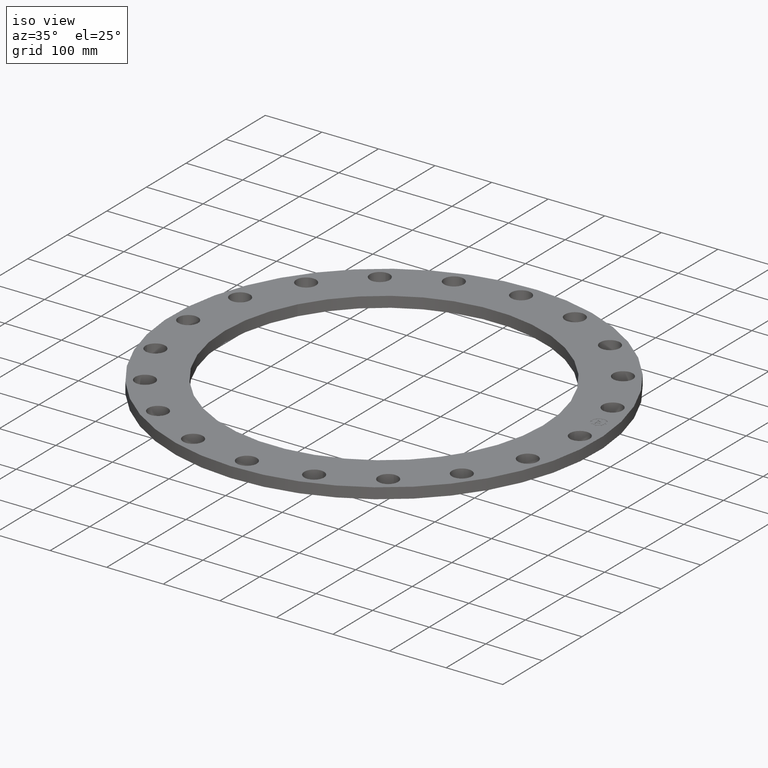
[diagram: clean part render]
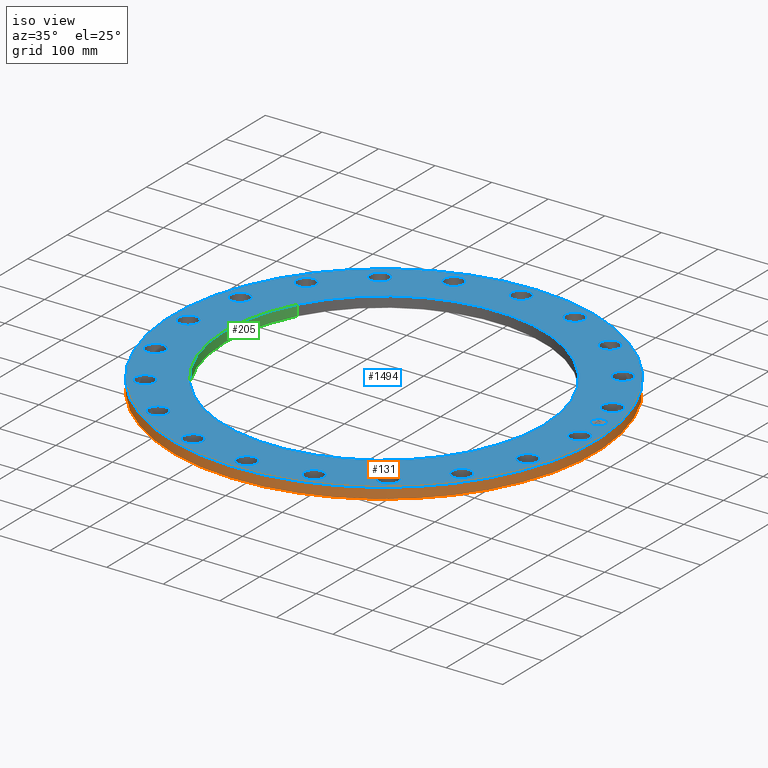
[diagram: same view with three faces highlighted in distinct colors, each labeled with its STEP entity id]
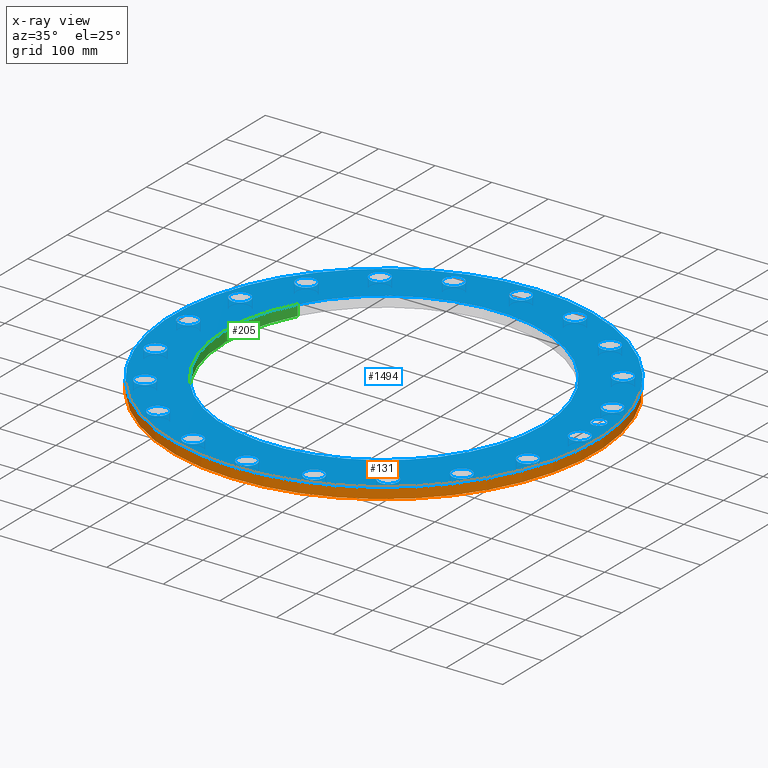
[diagram: x-ray of the same camera — body ghosted, the three highlighted faces saturated]
A machine part, iso view with three faces highlighted in distinct colors.
The next image is the same camera in x-ray (body ghosted, the three faces saturated) — at least one of them is partly hidden behind the body in this view.
Their STEP definitions:

[orange] entity #131 — the highlighted cylindrical surface (partial cylindrical patch) has radius 374.65 mm, axis along (0, 0, 1).
#95=AXIS2_PLACEMENT_3D('Cylinder Axis2P3D',#92,#93,#94) ;
#108=AXIS2_PLACEMENT_3D('Circle Axis2P3D',#106,#107,$) ;
#122=AXIS2_PLACEMENT_3D('Circle Axis2P3D',#120,#121,$) ;
#92=CARTESIAN_POINT('Axis2P3D Location',(0.,0.,0.375000000001)) ;
#97=CARTESIAN_POINT('Line Origine',(12.9443427879,7.07152669444,0.375000000002)) ;
#101=CARTESIAN_POINT('Vertex',(12.9443427879,7.07152669444,0.)) ;
#103=CARTESIAN_POINT('Vertex',(12.9443427879,7.07152669444,0.750000000003)) ;
#106=CARTESIAN_POINT('Axis2P3D Location',(0.,0.,0.750000000003)) ;
#110=CARTESIAN_POINT('Vertex',(-12.9443427879,-7.07152669444,0.750000000003)) ;
#113=CARTESIAN_POINT('Line Origine',(-12.9443427879,-7.07152669444,0.375000000002)) ;
#117=CARTESIAN_POINT('Vertex',(-12.9443427879,-7.07152669444,0.)) ;
#120=CARTESIAN_POINT('Axis2P3D Location',(0.,0.,0.)) ;
#93=DIRECTION('Axis2P3D Direction',(0.,0.,0.0393700787402)) ;
#94=DIRECTION('Axis2P3D XDirection',(0.0345504945626,0.0188750212049,0.)) ;
#98=DIRECTION('Vector Direction',(0.,0.,0.0393700787402)) ;
#107=DIRECTION('Axis2P3D Direction',(0.,0.,0.0393700787402)) ;
#114=DIRECTION('Vector Direction',(0.,0.,0.0393700787402)) ;
#121=DIRECTION('Axis2P3D Direction',(0.,0.,0.0393700787402)) ;
#99=VECTOR('Line Direction',#98,0.0393700787402) ;
#115=VECTOR('Line Direction',#114,0.0393700787402) ;
#126=ORIENTED_EDGE('',*,*,#105,.T.) ;
#127=ORIENTED_EDGE('',*,*,#112,.F.) ;
#128=ORIENTED_EDGE('',*,*,#119,.F.) ;
#129=ORIENTED_EDGE('',*,*,#124,.T.) ;
#131=ADVANCED_FACE('PartBody',(#130),#96,.T.) ;
#109=CIRCLE('generated circle',#108,14.7500000001) ;
#123=CIRCLE('generated circle',#122,14.7500000001) ;
#96=CYLINDRICAL_SURFACE('generated cylinder',#95,14.7500000001) ;
#105=EDGE_CURVE('',#102,#104,#100,.T.) ;
#112=EDGE_CURVE('',#111,#104,#109,.T.) ;
#119=EDGE_CURVE('',#118,#111,#116,.T.) ;
#124=EDGE_CURVE('',#118,#102,#123,.T.) ;
#125=EDGE_LOOP('',(#126,#127,#128,#129)) ;
#130=FACE_OUTER_BOUND('',#125,.T.) ;
#100=LINE('Line',#97,#99) ;
#116=LINE('Line',#113,#115) ;
#102=VERTEX_POINT('',#101) ;
#104=VERTEX_POINT('',#103) ;
#111=VERTEX_POINT('',#110) ;
#118=VERTEX_POINT('',#117) ;

[blue] entity #1494 — the highlighted planar face has unit normal (0, 0, 1).
#65=AXIS2_PLACEMENT_3D('Circle Axis2P3D',#63,#64,$) ;
#82=AXIS2_PLACEMENT_3D('Circle Axis2P3D',#80,#81,$) ;
#108=AXIS2_PLACEMENT_3D('Circle Axis2P3D',#106,#107,$) ;
#134=AXIS2_PLACEMENT_3D('Circle Axis2P3D',#132,#133,$) ;
#179=AXIS2_PLACEMENT_3D('Circle Axis2P3D',#177,#178,$) ;
#196=AXIS2_PLACEMENT_3D('Circle Axis2P3D',#194,#195,$) ;
#587=AXIS2_PLACEMENT_3D('Circle Axis2P3D',#585,#586,$) ;
#599=AXIS2_PLACEMENT_3D('Circle Axis2P3D',#597,#598,$) ;
#630=AXIS2_PLACEMENT_3D('Circle Axis2P3D',#628,#629,$) ;
#642=AXIS2_PLACEMENT_3D('Circle Axis2P3D',#640,#641,$) ;
#673=AXIS2_PLACEMENT_3D('Circle Axis2P3D',#671,#672,$) ;
#685=AXIS2_PLACEMENT_3D('Circle Axis2P3D',#683,#684,$) ;
#716=AXIS2_PLACEMENT_3D('Circle Axis2P3D',#714,#715,$) ;
#728=AXIS2_PLACEMENT_3D('Circle Axis2P3D',#726,#727,$) ;
#759=AXIS2_PLACEMENT_3D('Circle Axis2P3D',#757,#758,$) ;
#771=AXIS2_PLACEMENT_3D('Circle Axis2P3D',#769,#770,$) ;
#802=AXIS2_PLACEMENT_3D('Circle Axis2P3D',#800,#801,$) ;
#814=AXIS2_PLACEMENT_3D('Circle Axis2P3D',#812,#813,$) ;
#845=AXIS2_PLACEMENT_3D('Circle Axis2P3D',#843,#844,$) ;
#857=AXIS2_PLACEMENT_3D('Circle Axis2P3D',#855,#856,$) ;
#888=AXIS2_PLACEMENT_3D('Circle Axis2P3D',#886,#887,$) ;
#900=AXIS2_PLACEMENT_3D('Circle Axis2P3D',#898,#899,$) ;
#931=AXIS2_PLACEMENT_3D('Circle Axis2P3D',#929,#930,$) ;
#943=AXIS2_PLACEMENT_3D('Circle Axis2P3D',#941,#942,$) ;
#974=AXIS2_PLACEMENT_3D('Circle Axis2P3D',#972,#973,$) ;
#986=AXIS2_PLACEMENT_3D('Circle Axis2P3D',#984,#985,$) ;
#1017=AXIS2_PLACEMENT_3D('Circle Axis2P3D',#1015,#1016,$) ;
#1029=AXIS2_PLACEMENT_3D('Circle Axis2P3D',#1027,#1028,$) ;
#1060=AXIS2_PLACEMENT_3D('Circle Axis2P3D',#1058,#1059,$) ;
#1072=AXIS2_PLACEMENT_3D('Circle Axis2P3D',#1070,#1071,$) ;
#1103=AXIS2_PLACEMENT_3D('Circle Axis2P3D',#1101,#1102,$) ;
#1115=AXIS2_PLACEMENT_3D('Circle Axis2P3D',#1113,#1114,$) ;
#1146=AXIS2_PLACEMENT_3D('Circle Axis2P3D',#1144,#1145,$) ;
#1158=AXIS2_PLACEMENT_3D('Circle Axis2P3D',#1156,#1157,$) ;
#1189=AXIS2_PLACEMENT_3D('Circle Axis2P3D',#1187,#1188,$) ;
#1201=AXIS2_PLACEMENT_3D('Circle Axis2P3D',#1199,#1200,$) ;
#1232=AXIS2_PLACEMENT_3D('Circle Axis2P3D',#1230,#1231,$) ;
#1244=AXIS2_PLACEMENT_3D('Circle Axis2P3D',#1242,#1243,$) ;
#1275=AXIS2_PLACEMENT_3D('Circle Axis2P3D',#1273,#1274,$) ;
#1287=AXIS2_PLACEMENT_3D('Circle Axis2P3D',#1285,#1286,$) ;
#1318=AXIS2_PLACEMENT_3D('Circle Axis2P3D',#1316,#1317,$) ;
#1330=AXIS2_PLACEMENT_3D('Circle Axis2P3D',#1328,#1329,$) ;
#1361=AXIS2_PLACEMENT_3D('Circle Axis2P3D',#1359,#1360,$) ;
#1373=AXIS2_PLACEMENT_3D('Circle Axis2P3D',#1371,#1372,$) ;
#1386=AXIS2_PLACEMENT_3D('Plane Axis2P3D',#1383,#1384,#1385) ;
#1478=AXIS2_PLACEMENT_3D('Circle Axis2P3D',#1476,#1477,$) ;
#1487=AXIS2_PLACEMENT_3D('Circle Axis2P3D',#1485,#1486,$) ;
#46=CARTESIAN_POINT('Vertex',(13.0216619888,0.329605057792,0.750000000003)) ;
#60=CARTESIAN_POINT('Vertex',(14.2283380114,-0.329605057792,0.750000000003)) ;
#63=CARTESIAN_POINT('Axis2P3D Location',(13.6250000001,0.,0.750000000003)) ;
#80=CARTESIAN_POINT('Axis2P3D Location',(13.6250000001,0.,0.750000000003)) ;
#103=CARTESIAN_POINT('Vertex',(12.9443427879,7.07152669444,0.750000000003)) ;
#106=CARTESIAN_POINT('Axis2P3D Location',(0.,0.,0.750000000003)) ;
#110=CARTESIAN_POINT('Vertex',(-12.9443427879,-7.07152669444,0.750000000003)) ;
#132=CARTESIAN_POINT('Axis2P3D Location',(0.,0.,0.750000000003)) ;
#160=CARTESIAN_POINT('Vertex',(-9.73677852421,5.31922635083,0.750000000003)) ;
#174=CARTESIAN_POINT('Vertex',(9.73677852421,-5.31922635083,0.750000000003)) ;
#177=CARTESIAN_POINT('Axis2P3D Location',(-6.64385432059E-016,-2.09805925913E-016,0.750000000003)) ;
#194=CARTESIAN_POINT('Axis2P3D Location',(-6.64385432059E-016,-2.09805925913E-016,0.750000000003)) ;
#575=CARTESIAN_POINT('Vertex',(12.2824829231,4.33738788755,0.750000000003)) ;
#582=CARTESIAN_POINT('Vertex',(13.633807146,4.0833252092,0.750000000003)) ;
#585=CARTESIAN_POINT('Axis2P3D Location',(12.9581450346,4.21035654838,0.750000000003)) ;
#597=CARTESIAN_POINT('Axis2P3D Location',(12.9581450346,4.21035654838,0.750000000003)) ;
#618=CARTESIAN_POINT('Vertex',(10.3410088519,7.92059697051,0.750000000003)) ;
#625=CARTESIAN_POINT('Vertex',(11.7047042449,8.09655115452,0.750000000003)) ;
#628=CARTESIAN_POINT('Axis2P3D Location',(11.0228565484,8.00857406252,0.750000000003)) ;
#640=CARTESIAN_POINT('Axis2P3D Location',(11.0228565484,8.00857406252,0.750000000003)) ;
#661=CARTESIAN_POINT('Vertex',(7.38728478414,10.728482836,0.750000000003)) ;
#668=CARTESIAN_POINT('Vertex',(8.62986334089,11.3172302608,0.750000000003)) ;
#671=CARTESIAN_POINT('Axis2P3D Location',(8.00857406252,11.0228565484,0.750000000003)) ;
#683=CARTESIAN_POINT('Axis2P3D Location',(8.00857406252,11.0228565484,0.750000000003)) ;
#704=CARTESIAN_POINT('Vertex',(3.71044181151,12.4861900517,0.750000000003)) ;
#711=CARTESIAN_POINT('Vertex',(4.71027128524,13.4301000175,0.750000000003)) ;
#714=CARTESIAN_POINT('Axis2P3D Location',(4.21035654838,12.9581450346,0.750000000003)) ;
#726=CARTESIAN_POINT('Axis2P3D Location',(4.21035654838,12.9581450346,0.750000000003)) ;
#747=CARTESIAN_POINT('Vertex',(-0.329605057792,13.0216619888,0.750000000003)) ;
#754=CARTESIAN_POINT('Vertex',(0.329605057792,14.2283380114,0.750000000003)) ;
#757=CARTESIAN_POINT('Axis2P3D Location',(3.85964837404E-015,13.6250000001,0.750000000003)) ;
#769=CARTESIAN_POINT('Axis2P3D Location',(3.85964837404E-015,13.6250000001,0.750000000003)) ;
#790=CARTESIAN_POINT('Vertex',(-4.33738788755,12.2824829231,0.750000000003)) ;
#797=CARTESIAN_POINT('Vertex',(-4.0833252092,13.633807146,0.750000000003)) ;
#800=CARTESIAN_POINT('Axis2P3D Location',(-4.21035654838,12.9581450346,0.750000000003)) ;
#812=CARTESIAN_POINT('Axis2P3D Location',(-4.21035654838,12.9581450346,0.750000000003)) ;
#833=CARTESIAN_POINT('Vertex',(-7.92059697051,10.3410088519,0.750000000003)) ;
#840=CARTESIAN_POINT('Vertex',(-8.09655115452,11.7047042449,0.750000000003)) ;
#843=CARTESIAN_POINT('Axis2P3D Location',(-8.00857406252,11.0228565484,0.750000000003)) ;
#855=CARTESIAN_POINT('Axis2P3D Location',(-8.00857406252,11.0228565484,0.750000000003)) ;
#876=CARTESIAN_POINT('Vertex',(-10.728482836,7.38728478414,0.750000000003)) ;
#883=CARTESIAN_POINT('Vertex',(-11.3172302608,8.62986334089,0.750000000003)) ;
#886=CARTESIAN_POINT('Axis2P3D Location',(-11.0228565484,8.00857406252,0.750000000003)) ;
#898=CARTESIAN_POINT('Axis2P3D Location',(-11.0228565484,8.00857406252,0.750000000003)) ;
#919=CARTESIAN_POINT('Vertex',(-12.4861900517,3.71044181151,0.750000000003)) ;
#926=CARTESIAN_POINT('Vertex',(-13.4301000175,4.71027128524,0.750000000003)) ;
#929=CARTESIAN_POINT('Axis2P3D Location',(-12.9581450346,4.21035654838,0.750000000003)) ;
#941=CARTESIAN_POINT('Axis2P3D Location',(-12.9581450346,4.21035654838,0.750000000003)) ;
#962=CARTESIAN_POINT('Vertex',(-13.0216619888,-0.329605057792,0.750000000003)) ;
#969=CARTESIAN_POINT('Vertex',(-14.2283380114,0.329605057792,0.750000000003)) ;
#972=CARTESIAN_POINT('Axis2P3D Location',(-13.6250000001,7.71929674808E-015,0.750000000003)) ;
#984=CARTESIAN_POINT('Axis2P3D Location',(-13.6250000001,7.71929674808E-015,0.750000000003)) ;
#1005=CARTESIAN_POINT('Vertex',(-12.2824829231,-4.33738788755,0.750000000003)) ;
#1012=CARTESIAN_POINT('Vertex',(-13.633807146,-4.0833252092,0.750000000003)) ;
#1015=CARTESIAN_POINT('Axis2P3D Location',(-12.9581450346,-4.21035654838,0.750000000003)) ;
#1027=CARTESIAN_POINT('Axis2P3D Location',(-12.9581450346,-4.21035654838,0.750000000003)) ;
#1048=CARTESIAN_POINT('Vertex',(-10.3410088519,-7.92059697051,0.750000000003)) ;
#1055=CARTESIAN_POINT('Vertex',(-11.7047042449,-8.09655115452,0.750000000003)) ;
#1058=CARTESIAN_POINT('Axis2P3D Location',(-11.0228565484,-8.00857406252,0.750000000003)) ;
#1070=CARTESIAN_POINT('Axis2P3D Location',(-11.0228565484,-8.00857406252,0.750000000003)) ;
#1091=CARTESIAN_POINT('Vertex',(-7.38728478414,-10.728482836,0.750000000003)) ;
#1098=CARTESIAN_POINT('Vertex',(-8.62986334089,-11.3172302608,0.750000000003)) ;
#1101=CARTESIAN_POINT('Axis2P3D Location',(-8.00857406252,-11.0228565484,0.750000000003)) ;
#1113=CARTESIAN_POINT('Axis2P3D Location',(-8.00857406252,-11.0228565484,0.750000000003)) ;
#1134=CARTESIAN_POINT('Vertex',(-3.71044181151,-12.4861900517,0.750000000003)) ;
#1141=CARTESIAN_POINT('Vertex',(-4.71027128524,-13.4301000175,0.750000000003)) ;
#1144=CARTESIAN_POINT('Axis2P3D Location',(-4.21035654838,-12.9581450346,0.750000000003)) ;
#1156=CARTESIAN_POINT('Axis2P3D Location',(-4.21035654838,-12.9581450346,0.750000000003)) ;
#1177=CARTESIAN_POINT('Vertex',(0.329605057792,-13.0216619888,0.750000000003)) ;
#1184=CARTESIAN_POINT('Vertex',(-0.329605057792,-14.2283380114,0.750000000003)) ;
#1187=CARTESIAN_POINT('Axis2P3D Location',(-1.46043028642E-014,-13.6250000001,0.750000000003)) ;
#1199=CARTESIAN_POINT('Axis2P3D Location',(-1.46043028642E-014,-13.6250000001,0.750000000003)) ;
#1220=CARTESIAN_POINT('Vertex',(4.33738788755,-12.2824829231,0.750000000003)) ;
#1227=CARTESIAN_POINT('Vertex',(4.0833252092,-13.633807146,0.750000000003)) ;
#1230=CARTESIAN_POINT('Axis2P3D Location',(4.21035654838,-12.9581450346,0.750000000003)) ;
#1242=CARTESIAN_POINT('Axis2P3D Location',(4.21035654838,-12.9581450346,0.750000000003)) ;
#1263=CARTESIAN_POINT('Vertex',(7.92059697051,-10.3410088519,0.750000000003)) ;
#1270=CARTESIAN_POINT('Vertex',(8.09655115452,-11.7047042449,0.750000000003)) ;
#1273=CARTESIAN_POINT('Axis2P3D Location',(8.00857406252,-11.0228565484,0.750000000003)) ;
#1285=CARTESIAN_POINT('Axis2P3D Location',(8.00857406252,-11.0228565484,0.750000000003)) ;
#1306=CARTESIAN_POINT('Vertex',(10.728482836,-7.38728478414,0.750000000003)) ;
#1313=CARTESIAN_POINT('Vertex',(11.3172302608,-8.62986334089,0.750000000003)) ;
#1316=CARTESIAN_POINT('Axis2P3D Location',(11.0228565484,-8.00857406252,0.750000000003)) ;
#1328=CARTESIAN_POINT('Axis2P3D Location',(11.0228565484,-8.00857406252,0.750000000003)) ;
#1349=CARTESIAN_POINT('Vertex',(12.4861900517,-3.71044181151,0.750000000003)) ;
#1356=CARTESIAN_POINT('Vertex',(13.4301000175,-4.71027128524,0.750000000003)) ;
#1359=CARTESIAN_POINT('Axis2P3D Location',(12.9581450346,-4.21035654838,0.750000000003)) ;
#1371=CARTESIAN_POINT('Axis2P3D Location',(12.9581450346,-4.21035654838,0.750000000003)) ;
#1383=CARTESIAN_POINT('Axis2P3D Location',(14.7500000001,0.,0.750000000003)) ;
#1476=CARTESIAN_POINT('Axis2P3D Location',(13.4572536407,2.13141958618,0.750000000003)) ;
#1480=CARTESIAN_POINT('Vertex',(13.3790364089,2.62526375154,0.750000000003)) ;
#1482=CARTESIAN_POINT('Vertex',(13.5354708724,1.63757542082,0.750000000003)) ;
#1485=CARTESIAN_POINT('Axis2P3D Location',(13.4572536407,2.13141958618,0.750000000003)) ;
#64=DIRECTION('Axis2P3D Direction',(0.,-0.,-0.0393700787402)) ;
#81=DIRECTION('Axis2P3D Direction',(0.,-0.,-0.0393700787402)) ;
#107=DIRECTION('Axis2P3D Direction',(0.,0.,0.0393700787402)) ;
#133=DIRECTION('Axis2P3D Direction',(0.,0.,0.0393700787402)) ;
#178=DIRECTION('Axis2P3D Direction',(0.,-0.,-0.0393700787402)) ;
#195=DIRECTION('Axis2P3D Direction',(0.,-0.,-0.0393700787402)) ;
#586=DIRECTION('Axis2P3D Direction',(0.,0.,-0.0393700787402)) ;
#598=DIRECTION('Axis2P3D Direction',(0.,0.,-0.0393700787402)) ;
#629=DIRECTION('Axis2P3D Direction',(0.,0.,-0.0393700787402)) ;
#641=DIRECTION('Axis2P3D Direction',(0.,0.,-0.0393700787402)) ;
#672=DIRECTION('Axis2P3D Direction',(0.,0.,-0.0393700787402)) ;
#684=DIRECTION('Axis2P3D Direction',(0.,0.,-0.0393700787402)) ;
#715=DIRECTION('Axis2P3D Direction',(0.,0.,-0.0393700787402)) ;
#727=DIRECTION('Axis2P3D Direction',(0.,0.,-0.0393700787402)) ;
#758=DIRECTION('Axis2P3D Direction',(0.,0.,-0.0393700787402)) ;
#770=DIRECTION('Axis2P3D Direction',(0.,0.,-0.0393700787402)) ;
#801=DIRECTION('Axis2P3D Direction',(0.,0.,-0.0393700787402)) ;
#813=DIRECTION('Axis2P3D Direction',(0.,0.,-0.0393700787402)) ;
#844=DIRECTION('Axis2P3D Direction',(0.,0.,-0.0393700787402)) ;
#856=DIRECTION('Axis2P3D Direction',(0.,0.,-0.0393700787402)) ;
#887=DIRECTION('Axis2P3D Direction',(0.,0.,-0.0393700787402)) ;
#899=DIRECTION('Axis2P3D Direction',(0.,0.,-0.0393700787402)) ;
#930=DIRECTION('Axis2P3D Direction',(0.,0.,-0.0393700787402)) ;
#942=DIRECTION('Axis2P3D Direction',(0.,0.,-0.0393700787402)) ;
#973=DIRECTION('Axis2P3D Direction',(0.,0.,-0.0393700787402)) ;
#985=DIRECTION('Axis2P3D Direction',(0.,0.,-0.0393700787402)) ;
#1016=DIRECTION('Axis2P3D Direction',(-0.,0.,-0.0393700787402)) ;
#1028=DIRECTION('Axis2P3D Direction',(-0.,0.,-0.0393700787402)) ;
#1059=DIRECTION('Axis2P3D Direction',(-0.,0.,-0.0393700787402)) ;
#1071=DIRECTION('Axis2P3D Direction',(-0.,0.,-0.0393700787402)) ;
#1102=DIRECTION('Axis2P3D Direction',(-0.,0.,-0.0393700787402)) ;
#1114=DIRECTION('Axis2P3D Direction',(-0.,0.,-0.0393700787402)) ;
#1145=DIRECTION('Axis2P3D Direction',(-0.,0.,-0.0393700787402)) ;
#1157=DIRECTION('Axis2P3D Direction',(-0.,0.,-0.0393700787402)) ;
#1188=DIRECTION('Axis2P3D Direction',(-0.,0.,-0.0393700787402)) ;
#1200=DIRECTION('Axis2P3D Direction',(-0.,0.,-0.0393700787402)) ;
#1231=DIRECTION('Axis2P3D Direction',(0.,-0.,-0.0393700787402)) ;
#1243=DIRECTION('Axis2P3D Direction',(0.,-0.,-0.0393700787402)) ;
#1274=DIRECTION('Axis2P3D Direction',(0.,-0.,-0.0393700787402)) ;
#1286=DIRECTION('Axis2P3D Direction',(0.,-0.,-0.0393700787402)) ;
#1317=DIRECTION('Axis2P3D Direction',(0.,-0.,-0.0393700787402)) ;
#1329=DIRECTION('Axis2P3D Direction',(0.,-0.,-0.0393700787402)) ;
#1360=DIRECTION('Axis2P3D Direction',(0.,-0.,-0.0393700787402)) ;
#1372=DIRECTION('Axis2P3D Direction',(0.,-0.,-0.0393700787402)) ;
#1384=DIRECTION('Axis2P3D Direction',(0.,0.,0.0393700787402)) ;
#1385=DIRECTION('Axis2P3D XDirection',(0.0393700787402,0.,0.)) ;
#1477=DIRECTION('Axis2P3D Direction',(0.,0.,0.0393700787402)) ;
#1486=DIRECTION('Axis2P3D Direction',(0.,0.,0.0393700787402)) ;
#1389=ORIENTED_EDGE('',*,*,#112,.T.) ;
#1390=ORIENTED_EDGE('',*,*,#136,.T.) ;
#1393=ORIENTED_EDGE('',*,*,#84,.F.) ;
#1394=ORIENTED_EDGE('',*,*,#67,.F.) ;
#1397=ORIENTED_EDGE('',*,*,#198,.F.) ;
#1398=ORIENTED_EDGE('',*,*,#181,.F.) ;
#1401=ORIENTED_EDGE('',*,*,#589,.F.) ;
#1402=ORIENTED_EDGE('',*,*,#601,.F.) ;
#1405=ORIENTED_EDGE('',*,*,#632,.F.) ;
#1406=ORIENTED_EDGE('',*,*,#644,.F.) ;
#1409=ORIENTED_EDGE('',*,*,#675,.F.) ;
#1410=ORIENTED_EDGE('',*,*,#687,.F.) ;
#1413=ORIENTED_EDGE('',*,*,#718,.F.) ;
#1414=ORIENTED_EDGE('',*,*,#730,.F.) ;
#1417=ORIENTED_EDGE('',*,*,#761,.F.) ;
#1418=ORIENTED_EDGE('',*,*,#773,.F.) ;
#1421=ORIENTED_EDGE('',*,*,#804,.F.) ;
#1422=ORIENTED_EDGE('',*,*,#816,.F.) ;
#1425=ORIENTED_EDGE('',*,*,#847,.F.) ;
#1426=ORIENTED_EDGE('',*,*,#859,.F.) ;
#1429=ORIENTED_EDGE('',*,*,#890,.F.) ;
#1430=ORIENTED_EDGE('',*,*,#902,.F.) ;
#1433=ORIENTED_EDGE('',*,*,#933,.F.) ;
#1434=ORIENTED_EDGE('',*,*,#945,.F.) ;
#1437=ORIENTED_EDGE('',*,*,#976,.F.) ;
#1438=ORIENTED_EDGE('',*,*,#988,.F.) ;
#1441=ORIENTED_EDGE('',*,*,#1019,.F.) ;
#1442=ORIENTED_EDGE('',*,*,#1031,.F.) ;
#1445=ORIENTED_EDGE('',*,*,#1062,.F.) ;
#1446=ORIENTED_EDGE('',*,*,#1074,.F.) ;
#1449=ORIENTED_EDGE('',*,*,#1105,.F.) ;
#1450=ORIENTED_EDGE('',*,*,#1117,.F.) ;
#1453=ORIENTED_EDGE('',*,*,#1148,.F.) ;
#1454=ORIENTED_EDGE('',*,*,#1160,.F.) ;
#1457=ORIENTED_EDGE('',*,*,#1191,.F.) ;
#1458=ORIENTED_EDGE('',*,*,#1203,.F.) ;
#1461=ORIENTED_EDGE('',*,*,#1234,.F.) ;
#1462=ORIENTED_EDGE('',*,*,#1246,.F.) ;
#1465=ORIENTED_EDGE('',*,*,#1277,.F.) ;
#1466=ORIENTED_EDGE('',*,*,#1289,.F.) ;
#1469=ORIENTED_EDGE('',*,*,#1320,.F.) ;
#1470=ORIENTED_EDGE('',*,*,#1332,.F.) ;
#1473=ORIENTED_EDGE('',*,*,#1363,.F.) ;
#1474=ORIENTED_EDGE('',*,*,#1375,.F.) ;
#1491=ORIENTED_EDGE('',*,*,#1484,.F.) ;
#1492=ORIENTED_EDGE('',*,*,#1489,.F.) ;
#1395=FACE_BOUND('',#1392,.T.) ;
#1399=FACE_BOUND('',#1396,.T.) ;
#1403=FACE_BOUND('',#1400,.T.) ;
#1407=FACE_BOUND('',#1404,.T.) ;
#1411=FACE_BOUND('',#1408,.T.) ;
#1415=FACE_BOUND('',#1412,.T.) ;
#1419=FACE_BOUND('',#1416,.T.) ;
#1423=FACE_BOUND('',#1420,.T.) ;
#1427=FACE_BOUND('',#1424,.T.) ;
#1431=FACE_BOUND('',#1428,.T.) ;
#1435=FACE_BOUND('',#1432,.T.) ;
#1439=FACE_BOUND('',#1436,.T.) ;
#1443=FACE_BOUND('',#1440,.T.) ;
#1447=FACE_BOUND('',#1444,.T.) ;
#1451=FACE_BOUND('',#1448,.T.) ;
#1455=FACE_BOUND('',#1452,.T.) ;
#1459=FACE_BOUND('',#1456,.T.) ;
#1463=FACE_BOUND('',#1460,.T.) ;
#1467=FACE_BOUND('',#1464,.T.) ;
#1471=FACE_BOUND('',#1468,.T.) ;
#1475=FACE_BOUND('',#1472,.T.) ;
#1493=FACE_BOUND('',#1490,.T.) ;
#1494=ADVANCED_FACE('PartBody',(#1391,#1395,#1399,#1403,#1407,#1411,#1415,#1419,#1423,#1427,#1431,#1435,#1439,#1443,#1447,#1451,#1455,#1459,#1463,#1467,#1471,#1475,#1493),#1387,.T.) ;
#66=CIRCLE('generated circle',#65,0.687500000003) ;
#83=CIRCLE('generated circle',#82,0.687500000003) ;
#109=CIRCLE('generated circle',#108,14.7500000001) ;
#135=CIRCLE('generated circle',#134,14.7500000001) ;
#180=CIRCLE('generated circle',#179,11.095) ;
#197=CIRCLE('generated circle',#196,11.095) ;
#588=CIRCLE('generated circle',#587,0.687500000003) ;
#600=CIRCLE('generated circle',#599,0.687500000003) ;
#631=CIRCLE('generated circle',#630,0.687500000003) ;
#643=CIRCLE('generated circle',#642,0.687500000003) ;
#674=CIRCLE('generated circle',#673,0.687500000003) ;
#686=CIRCLE('generated circle',#685,0.687500000003) ;
#717=CIRCLE('generated circle',#716,0.687500000003) ;
#729=CIRCLE('generated circle',#728,0.687500000003) ;
#760=CIRCLE('generated circle',#759,0.687500000003) ;
#772=CIRCLE('generated circle',#771,0.687500000003) ;
#803=CIRCLE('generated circle',#802,0.687500000003) ;
#815=CIRCLE('generated circle',#814,0.687500000003) ;
#846=CIRCLE('generated circle',#845,0.687500000003) ;
#858=CIRCLE('generated circle',#857,0.687500000003) ;
#889=CIRCLE('generated circle',#888,0.687500000003) ;
#901=CIRCLE('generated circle',#900,0.687500000003) ;
#932=CIRCLE('generated circle',#931,0.687500000003) ;
#944=CIRCLE('generated circle',#943,0.687500000003) ;
#975=CIRCLE('generated circle',#974,0.687500000003) ;
#987=CIRCLE('generated circle',#986,0.687500000003) ;
#1018=CIRCLE('generated circle',#1017,0.687500000003) ;
#1030=CIRCLE('generated circle',#1029,0.687500000003) ;
#1061=CIRCLE('generated circle',#1060,0.687500000003) ;
#1073=CIRCLE('generated circle',#1072,0.687500000003) ;
#1104=CIRCLE('generated circle',#1103,0.687500000003) ;
#1116=CIRCLE('generated circle',#1115,0.687500000003) ;
#1147=CIRCLE('generated circle',#1146,0.687500000003) ;
#1159=CIRCLE('generated circle',#1158,0.687500000003) ;
#1190=CIRCLE('generated circle',#1189,0.687500000003) ;
#1202=CIRCLE('generated circle',#1201,0.687500000003) ;
#1233=CIRCLE('generated circle',#1232,0.687500000003) ;
#1245=CIRCLE('generated circle',#1244,0.687500000003) ;
#1276=CIRCLE('generated circle',#1275,0.687500000003) ;
#1288=CIRCLE('generated circle',#1287,0.687500000003) ;
#1319=CIRCLE('generated circle',#1318,0.687500000003) ;
#1331=CIRCLE('generated circle',#1330,0.687500000003) ;
#1362=CIRCLE('generated circle',#1361,0.687500000003) ;
#1374=CIRCLE('generated circle',#1373,0.687500000003) ;
#1479=CIRCLE('generated circle',#1478,0.499999995002) ;
#1488=CIRCLE('generated circle',#1487,0.499999995002) ;
#67=EDGE_CURVE('',#61,#47,#66,.F.) ;
#84=EDGE_CURVE('',#47,#61,#83,.F.) ;
#112=EDGE_CURVE('',#111,#104,#109,.T.) ;
#136=EDGE_CURVE('',#104,#111,#135,.T.) ;
#181=EDGE_CURVE('',#175,#161,#180,.F.) ;
#198=EDGE_CURVE('',#161,#175,#197,.F.) ;
#589=EDGE_CURVE('',#583,#576,#588,.F.) ;
#601=EDGE_CURVE('',#576,#583,#600,.F.) ;
#632=EDGE_CURVE('',#626,#619,#631,.F.) ;
#644=EDGE_CURVE('',#619,#626,#643,.F.) ;
#675=EDGE_CURVE('',#669,#662,#674,.F.) ;
#687=EDGE_CURVE('',#662,#669,#686,.F.) ;
#718=EDGE_CURVE('',#712,#705,#717,.F.) ;
#730=EDGE_CURVE('',#705,#712,#729,.F.) ;
#761=EDGE_CURVE('',#755,#748,#760,.F.) ;
#773=EDGE_CURVE('',#748,#755,#772,.F.) ;
#804=EDGE_CURVE('',#798,#791,#803,.F.) ;
#816=EDGE_CURVE('',#791,#798,#815,.F.) ;
#847=EDGE_CURVE('',#841,#834,#846,.F.) ;
#859=EDGE_CURVE('',#834,#841,#858,.F.) ;
#890=EDGE_CURVE('',#884,#877,#889,.F.) ;
#902=EDGE_CURVE('',#877,#884,#901,.F.) ;
#933=EDGE_CURVE('',#927,#920,#932,.F.) ;
#945=EDGE_CURVE('',#920,#927,#944,.F.) ;
#976=EDGE_CURVE('',#970,#963,#975,.F.) ;
#988=EDGE_CURVE('',#963,#970,#987,.F.) ;
#1019=EDGE_CURVE('',#1013,#1006,#1018,.F.) ;
#1031=EDGE_CURVE('',#1006,#1013,#1030,.F.) ;
#1062=EDGE_CURVE('',#1056,#1049,#1061,.F.) ;
#1074=EDGE_CURVE('',#1049,#1056,#1073,.F.) ;
#1105=EDGE_CURVE('',#1099,#1092,#1104,.F.) ;
#1117=EDGE_CURVE('',#1092,#1099,#1116,.F.) ;
#1148=EDGE_CURVE('',#1142,#1135,#1147,.F.) ;
#1160=EDGE_CURVE('',#1135,#1142,#1159,.F.) ;
#1191=EDGE_CURVE('',#1185,#1178,#1190,.F.) ;
#1203=EDGE_CURVE('',#1178,#1185,#1202,.F.) ;
#1234=EDGE_CURVE('',#1228,#1221,#1233,.F.) ;
#1246=EDGE_CURVE('',#1221,#1228,#1245,.F.) ;
#1277=EDGE_CURVE('',#1271,#1264,#1276,.F.) ;
#1289=EDGE_CURVE('',#1264,#1271,#1288,.F.) ;
#1320=EDGE_CURVE('',#1314,#1307,#1319,.F.) ;
#1332=EDGE_CURVE('',#1307,#1314,#1331,.F.) ;
#1363=EDGE_CURVE('',#1357,#1350,#1362,.F.) ;
#1375=EDGE_CURVE('',#1350,#1357,#1374,.F.) ;
#1484=EDGE_CURVE('',#1481,#1483,#1479,.T.) ;
#1489=EDGE_CURVE('',#1483,#1481,#1488,.T.) ;
#1388=EDGE_LOOP('',(#1389,#1390)) ;
#1392=EDGE_LOOP('',(#1393,#1394)) ;
#1396=EDGE_LOOP('',(#1397,#1398)) ;
#1400=EDGE_LOOP('',(#1401,#1402)) ;
#1404=EDGE_LOOP('',(#1405,#1406)) ;
#1408=EDGE_LOOP('',(#1409,#1410)) ;
#1412=EDGE_LOOP('',(#1413,#1414)) ;
#1416=EDGE_LOOP('',(#1417,#1418)) ;
#1420=EDGE_LOOP('',(#1421,#1422)) ;
#1424=EDGE_LOOP('',(#1425,#1426)) ;
#1428=EDGE_LOOP('',(#1429,#1430)) ;
#1432=EDGE_LOOP('',(#1433,#1434)) ;
#1436=EDGE_LOOP('',(#1437,#1438)) ;
#1440=EDGE_LOOP('',(#1441,#1442)) ;
#1444=EDGE_LOOP('',(#1445,#1446)) ;
#1448=EDGE_LOOP('',(#1449,#1450)) ;
#1452=EDGE_LOOP('',(#1453,#1454)) ;
#1456=EDGE_LOOP('',(#1457,#1458)) ;
#1460=EDGE_LOOP('',(#1461,#1462)) ;
#1464=EDGE_LOOP('',(#1465,#1466)) ;
#1468=EDGE_LOOP('',(#1469,#1470)) ;
#1472=EDGE_LOOP('',(#1473,#1474)) ;
#1490=EDGE_LOOP('',(#1491,#1492)) ;
#1391=FACE_OUTER_BOUND('',#1388,.T.) ;
#1387=PLANE('',#1386) ;
#47=VERTEX_POINT('',#46) ;
#61=VERTEX_POINT('',#60) ;
#104=VERTEX_POINT('',#103) ;
#111=VERTEX_POINT('',#110) ;
#161=VERTEX_POINT('',#160) ;
#175=VERTEX_POINT('',#174) ;
#576=VERTEX_POINT('',#575) ;
#583=VERTEX_POINT('',#582) ;
#619=VERTEX_POINT('',#618) ;
#626=VERTEX_POINT('',#625) ;
#662=VERTEX_POINT('',#661) ;
#669=VERTEX_POINT('',#668) ;
#705=VERTEX_POINT('',#704) ;
#712=VERTEX_POINT('',#711) ;
#748=VERTEX_POINT('',#747) ;
#755=VERTEX_POINT('',#754) ;
#791=VERTEX_POINT('',#790) ;
#798=VERTEX_POINT('',#797) ;
#834=VERTEX_POINT('',#833) ;
#841=VERTEX_POINT('',#840) ;
#877=VERTEX_POINT('',#876) ;
#884=VERTEX_POINT('',#883) ;
#920=VERTEX_POINT('',#919) ;
#927=VERTEX_POINT('',#926) ;
#963=VERTEX_POINT('',#962) ;
#970=VERTEX_POINT('',#969) ;
#1006=VERTEX_POINT('',#1005) ;
#1013=VERTEX_POINT('',#1012) ;
#1049=VERTEX_POINT('',#1048) ;
#1056=VERTEX_POINT('',#1055) ;
#1092=VERTEX_POINT('',#1091) ;
#1099=VERTEX_POINT('',#1098) ;
#1135=VERTEX_POINT('',#1134) ;
#1142=VERTEX_POINT('',#1141) ;
#1178=VERTEX_POINT('',#1177) ;
#1185=VERTEX_POINT('',#1184) ;
#1221=VERTEX_POINT('',#1220) ;
#1228=VERTEX_POINT('',#1227) ;
#1264=VERTEX_POINT('',#1263) ;
#1271=VERTEX_POINT('',#1270) ;
#1307=VERTEX_POINT('',#1306) ;
#1314=VERTEX_POINT('',#1313) ;
#1350=VERTEX_POINT('',#1349) ;
#1357=VERTEX_POINT('',#1356) ;
#1481=VERTEX_POINT('',#1480) ;
#1483=VERTEX_POINT('',#1482) ;

[green] entity #205 — the highlighted cylindrical surface (partial cylindrical patch) has radius 281.813 mm, axis along (0, -0, -1).
#152=AXIS2_PLACEMENT_3D('Cylinder Axis2P3D',#149,#150,#151) ;
#191=AXIS2_PLACEMENT_3D('Circle Axis2P3D',#189,#190,$) ;
#196=AXIS2_PLACEMENT_3D('Circle Axis2P3D',#194,#195,$) ;
#149=CARTESIAN_POINT('Axis2P3D Location',(-6.64385432059E-016,-2.09805925913E-016,0.746062992129)) ;
#154=CARTESIAN_POINT('Line Origine',(-9.73677852421,5.31922635083,0.375000000001)) ;
#158=CARTESIAN_POINT('Vertex',(-9.73677852421,5.31922635083,0.)) ;
#160=CARTESIAN_POINT('Vertex',(-9.73677852421,5.31922635083,0.750000000003)) ;
#167=CARTESIAN_POINT('Vertex',(9.73677852421,-5.31922635083,0.)) ;
#170=CARTESIAN_POINT('Line Origine',(9.73677852421,-5.31922635083,0.375000000001)) ;
#174=CARTESIAN_POINT('Vertex',(9.73677852421,-5.31922635083,0.750000000003)) ;
#189=CARTESIAN_POINT('Axis2P3D Location',(-6.64385432059E-016,-2.09805925913E-016,0.)) ;
#194=CARTESIAN_POINT('Axis2P3D Location',(-6.64385432059E-016,-2.09805925913E-016,0.750000000003)) ;
#150=DIRECTION('Axis2P3D Direction',(0.,-0.,-0.0393700787402)) ;
#151=DIRECTION('Axis2P3D XDirection',(0.0345504945626,-0.0188750212049,0.)) ;
#155=DIRECTION('Vector Direction',(0.,0.,-0.0393700787402)) ;
#171=DIRECTION('Vector Direction',(0.,0.,-0.0393700787402)) ;
#190=DIRECTION('Axis2P3D Direction',(0.,-0.,-0.0393700787402)) ;
#195=DIRECTION('Axis2P3D Direction',(0.,-0.,-0.0393700787402)) ;
#156=VECTOR('Line Direction',#155,0.0393700787402) ;
#172=VECTOR('Line Direction',#171,0.0393700787402) ;
#200=ORIENTED_EDGE('',*,*,#176,.F.) ;
#201=ORIENTED_EDGE('',*,*,#193,.F.) ;
#202=ORIENTED_EDGE('',*,*,#162,.T.) ;
#203=ORIENTED_EDGE('',*,*,#198,.T.) ;
#205=ADVANCED_FACE('PartBody',(#204),#153,.F.) ;
#192=CIRCLE('generated circle',#191,11.095) ;
#197=CIRCLE('generated circle',#196,11.095) ;
#153=CYLINDRICAL_SURFACE('generated cylinder',#152,11.095) ;
#162=EDGE_CURVE('',#159,#161,#157,.F.) ;
#176=EDGE_CURVE('',#168,#175,#173,.F.) ;
#193=EDGE_CURVE('',#159,#168,#192,.F.) ;
#198=EDGE_CURVE('',#161,#175,#197,.F.) ;
#199=EDGE_LOOP('',(#200,#201,#202,#203)) ;
#204=FACE_OUTER_BOUND('',#199,.T.) ;
#157=LINE('Line',#154,#156) ;
#173=LINE('Line',#170,#172) ;
#159=VERTEX_POINT('',#158) ;
#161=VERTEX_POINT('',#160) ;
#168=VERTEX_POINT('',#167) ;
#175=VERTEX_POINT('',#174) ;